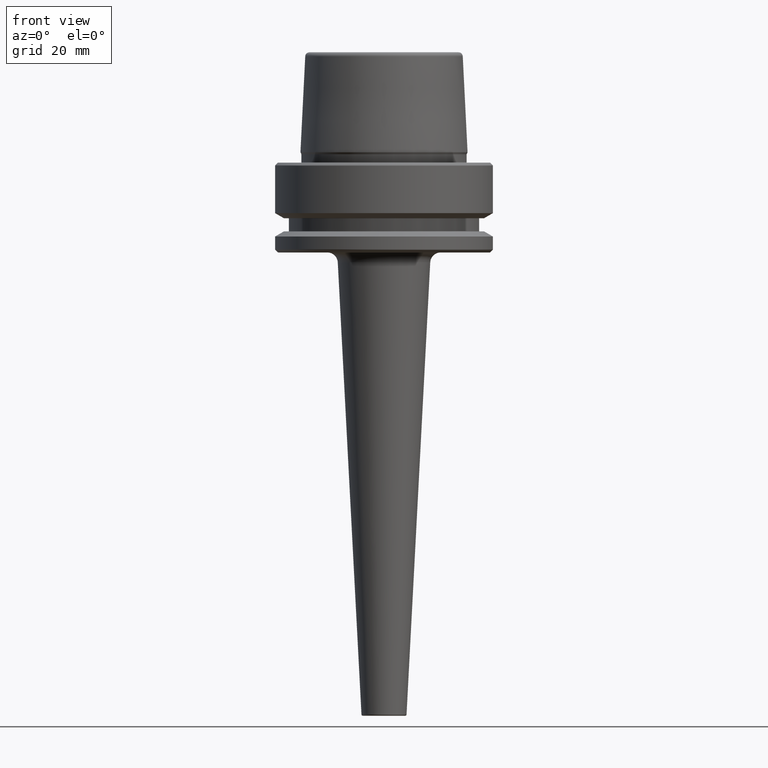
[diagram: clean part render]
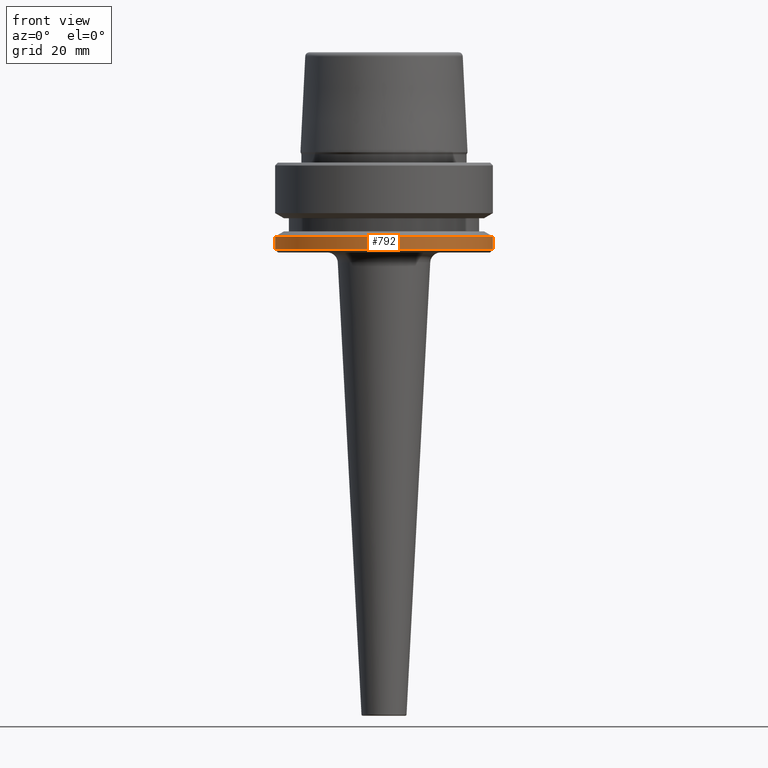
[diagram: same view with one face highlighted and labeled with its STEP entity id]
A machine part, front view. The second image highlights one B-rep face of the part: STEP entity #792.
In plain terms, the highlighted cylindrical surface (partial cylindrical patch) has radius 31.5 mm, axis along (-0, -0, 1).
Its self-contained STEP definition (entity closure, byte-faithful):
#25 = CARTESIAN_POINT ( 'NONE',  ( 31.50000000000000000, 0.0000000000000000000, -25.03431457505077200 ) ) ;
#35 = AXIS2_PLACEMENT_3D ( 'NONE', #248, #89, #325 ) ;
#39 = VERTEX_POINT ( 'NONE', #25 ) ;
#54 = CARTESIAN_POINT ( 'NONE',  ( 31.50000000000000000, 0.0000000000000000000, -21.37749907475931700 ) ) ;
#63 = VERTEX_POINT ( 'NONE', #75 ) ;
#75 = CARTESIAN_POINT ( 'NONE',  ( -31.50000000000000000, 3.857637417314161900E-015, -25.03431457505077200 ) ) ;
#83 = ORIENTED_EDGE ( 'NONE', *, *, #545, .F. ) ;
#89 = DIRECTION ( 'NONE',  ( -0.0000000000000000000, -0.0000000000000000000, 1.000000000000000000 ) ) ;
#123 = VERTEX_POINT ( 'NONE', #54 ) ;
#144 = EDGE_CURVE ( 'NONE', #63, #39, #772, .T. ) ;
#162 = EDGE_CURVE ( 'NONE', #39, #123, #173, .T. ) ;
#173 = LINE ( 'NONE', #327, #793 ) ;
#185 = DIRECTION ( 'NONE',  ( -0.0000000000000000000, -0.0000000000000000000, 1.000000000000000000 ) ) ;
#248 = CARTESIAN_POINT ( 'NONE',  ( 0.0000000000000000000, 0.0000000000000000000, 78.96908074195309300 ) ) ;
#252 = CARTESIAN_POINT ( 'NONE',  ( 0.0000000000000000000, 0.0000000000000000000, -21.37749907475931700 ) ) ;
#275 = VERTEX_POINT ( 'NONE', #1043 ) ;
#325 = DIRECTION ( 'NONE',  ( 1.000000000000000000, 0.0000000000000000000, 0.0000000000000000000 ) ) ;
#327 = CARTESIAN_POINT ( 'NONE',  ( 31.50000000000000000, 0.0000000000000000000, 78.96908074195309300 ) ) ;
#412 = DIRECTION ( 'NONE',  ( -0.0000000000000000000, -0.0000000000000000000, 1.000000000000000000 ) ) ;
#478 = DIRECTION ( 'NONE',  ( 1.000000000000000000, 0.0000000000000000000, 0.0000000000000000000 ) ) ;
#518 = FACE_OUTER_BOUND ( 'NONE', #778, .T. ) ;
#545 = EDGE_CURVE ( 'NONE', #63, #275, #706, .T. ) ;
#706 = LINE ( 'NONE', #771, #933 ) ;
#738 = DIRECTION ( 'NONE',  ( -0.0000000000000000000, -0.0000000000000000000, 1.000000000000000000 ) ) ;
#771 = CARTESIAN_POINT ( 'NONE',  ( -31.50000000000000000, 3.857637417314162700E-015, 78.96908074195309300 ) ) ;
#772 = CIRCLE ( 'NONE', #815, 31.50000000000000000 ) ;
#776 = ORIENTED_EDGE ( 'NONE', *, *, #162, .T. ) ;
#778 = EDGE_LOOP ( 'NONE', ( #83, #1066, #776, #966 ) ) ;
#792 = ADVANCED_FACE ( 'NONE', ( #518 ), #1233, .T. ) ;
#793 = VECTOR ( 'NONE', #738, 1000.000000000000000 ) ;
#815 = AXIS2_PLACEMENT_3D ( 'NONE', #1236, #412, #909 ) ;
#847 = EDGE_CURVE ( 'NONE', #275, #123, #964, .T. ) ;
#909 = DIRECTION ( 'NONE',  ( 1.000000000000000000, 0.0000000000000000000, 0.0000000000000000000 ) ) ;
#933 = VECTOR ( 'NONE', #185, 1000.000000000000000 ) ;
#964 = CIRCLE ( 'NONE', #1035, 31.50000000000000000 ) ;
#966 = ORIENTED_EDGE ( 'NONE', *, *, #847, .F. ) ;
#1035 = AXIS2_PLACEMENT_3D ( 'NONE', #252, #1067, #478 ) ;
#1043 = CARTESIAN_POINT ( 'NONE',  ( -31.50000000000000000, 3.857637417314162700E-015, -21.37749907475931700 ) ) ;
#1066 = ORIENTED_EDGE ( 'NONE', *, *, #144, .T. ) ;
#1067 = DIRECTION ( 'NONE',  ( -0.0000000000000000000, -0.0000000000000000000, 1.000000000000000000 ) ) ;
#1233 = CYLINDRICAL_SURFACE ( 'NONE', #35, 31.50000000000000000 ) ;
#1236 = CARTESIAN_POINT ( 'NONE',  ( 0.0000000000000000000, 0.0000000000000000000, -25.03431457505077200 ) ) ;